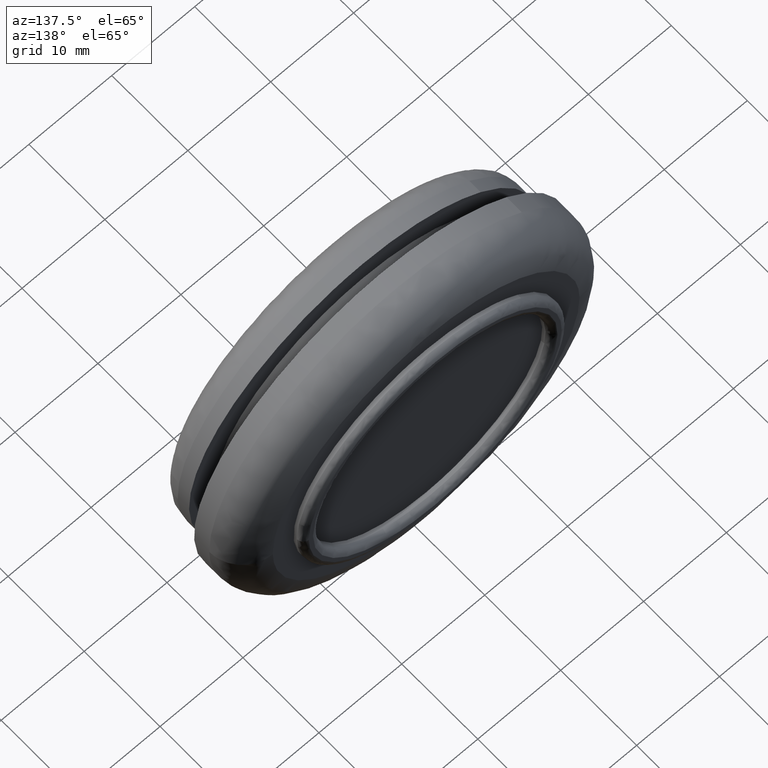
[diagram: clean part render]
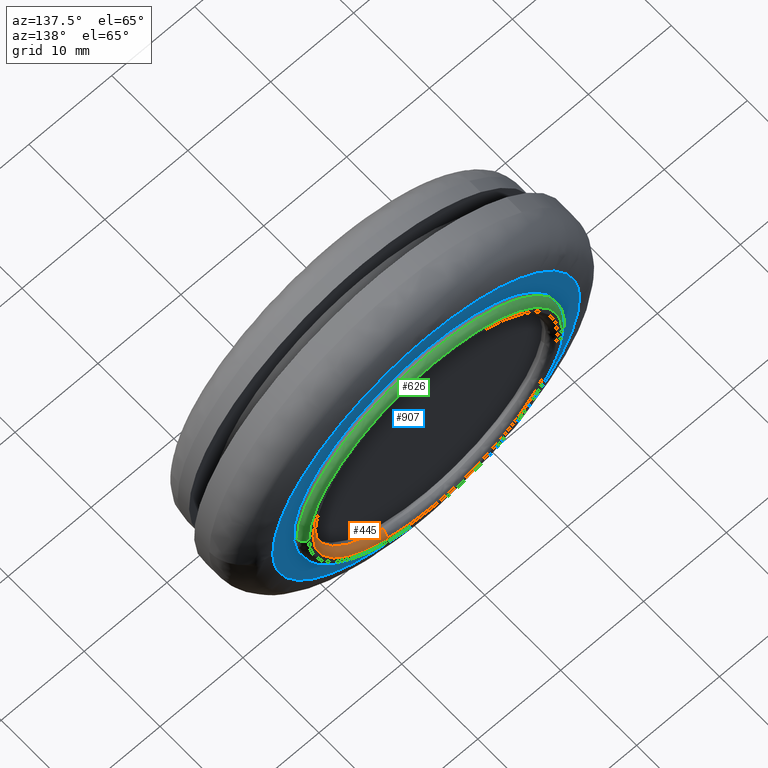
[diagram: same view with three faces highlighted in distinct colors, each labeled with its STEP entity id]
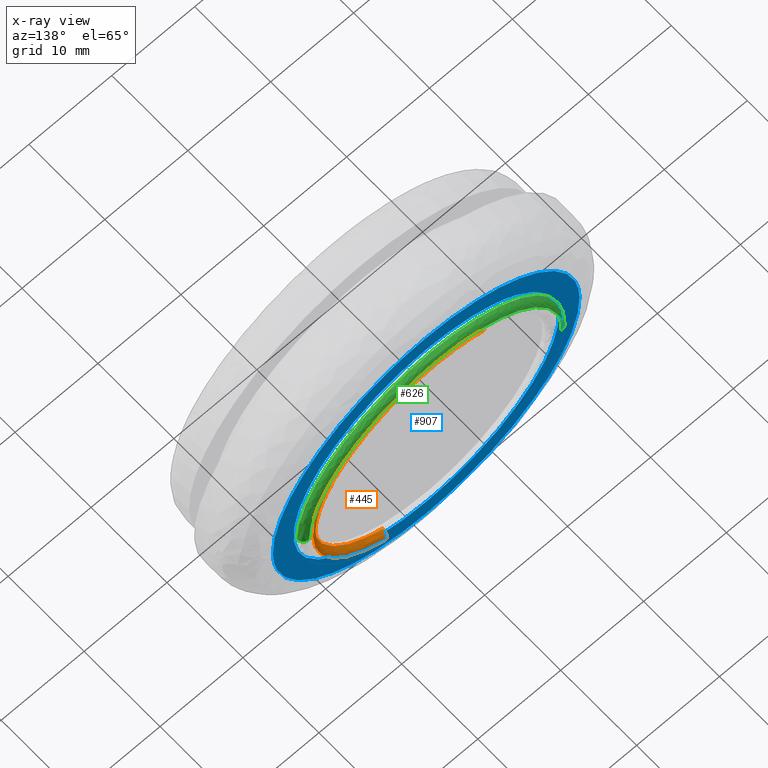
[diagram: x-ray of the same camera — body ghosted, the three highlighted faces saturated]
A machine part, auxiliary view with three faces highlighted in distinct colors.
The next image is the same camera in x-ray (body ghosted, the three faces saturated) — at least one of them is partly hidden behind the body in this view.
Their STEP definitions:

[orange] entity #445 — the highlighted face is a freeform B-spline surface patch.
#95=CARTESIAN_POINT('',(13.846225133910430,12.749999999930530,2.069311368702698));
#96=VERTEX_POINT('',#95);
#97=CARTESIAN_POINT('',(0.0,12.750000000000000,14.0));
#98=VERTEX_POINT('',#97);
#99=CARTESIAN_POINT('',(13.846225133910432,12.749999999930530,2.069311368702697));
#100=CARTESIAN_POINT('',(12.063189730230370,12.749999999988191,13.999999999998886));
#101=CARTESIAN_POINT('',(0.0,12.750000000000000,14.0));
#109=(BOUNDED_CURVE()B_SPLINE_CURVE(2,(#99,#100,#101),.UNSPECIFIED.,.F.,.U.)B_SPLINE_CURVE_WITH_KNOTS((3,3),(0.275488723286989,0.500000000000000),.UNSPECIFIED.)CURVE()GEOMETRIC_REPRESENTATION_ITEM()RATIONAL_B_SPLINE_CURVE((0.946365339344792,0.736968678014434,1.0))REPRESENTATION_ITEM(''));
#110=EDGE_CURVE('',#96,#98,#109,.T.);
#126=CARTESIAN_POINT('',(-5.640690099993938,12.749999999868569,12.813376416691669));
#127=VERTEX_POINT('',#126);
#143=CARTESIAN_POINT('',(0.0,12.750000000000000,14.0));
#144=CARTESIAN_POINT('',(-2.945159168792912,12.749999999934289,14.000000000000002));
#145=CARTESIAN_POINT('',(-5.640690099993938,12.749999999868574,12.813376416691668));
#153=(BOUNDED_CURVE()B_SPLINE_CURVE(2,(#143,#144,#145),.UNSPECIFIED.,.F.,.U.)B_SPLINE_CURVE_WITH_KNOTS((3,3),(0.500000000000000,0.568414990138580),.UNSPECIFIED.)CURVE()GEOMETRIC_REPRESENTATION_ITEM()RATIONAL_B_SPLINE_CURVE((1.0,0.919846853292883,0.883563120518114))REPRESENTATION_ITEM(''));
#154=EDGE_CURVE('',#98,#127,#153,.T.);
#177=CARTESIAN_POINT('',(5.640690099993938,12.749999999868569,-12.813376416691669));
#178=VERTEX_POINT('',#177);
#179=CARTESIAN_POINT('',(5.640690099993938,12.749999999868574,-12.813376416691668));
#180=CARTESIAN_POINT('',(13.999999999993587,12.749999999877682,-9.133450450081565));
#181=CARTESIAN_POINT('',(13.999999999986530,12.749999999920650,-2.011656E-012));
#182=CARTESIAN_POINT('',(13.999999999985720,12.749999999925535,1.040369350692162));
#183=CARTESIAN_POINT('',(13.846225133910432,12.749999999930530,2.069311368702697));
#191=(BOUNDED_CURVE()B_SPLINE_CURVE(2,(#179,#180,#181,#182,#183),.UNSPECIFIED.,.F.,.U.)B_SPLINE_CURVE_WITH_KNOTS((3,2,3),(0.068414990138580,0.250000000000000,0.275488723286989),.UNSPECIFIED.)CURVE()GEOMETRIC_REPRESENTATION_ITEM()RATIONAL_B_SPLINE_CURVE((0.883563120518114,0.787259927893665,1.0,0.970138103172114,0.946365339344792))REPRESENTATION_ITEM(''));
#192=EDGE_CURVE('',#178,#96,#191,.T.);
#272=CARTESIAN_POINT('',(-5.942869926745715,13.500000000000000,13.499807296077019));
#273=VERTEX_POINT('',#272);
#302=CARTESIAN_POINT('',(-5.640690099993938,12.749999999868576,12.813376416691669));
#303=CARTESIAN_POINT('',(-5.640690099988347,12.830416677140457,12.813376416678741));
#304=CARTESIAN_POINT('',(-5.647559214476792,12.909005332441540,12.828980278622581));
#305=CARTESIAN_POINT('',(-5.699215652896374,13.499999999929845,12.946322904803228));
#306=CARTESIAN_POINT('',(-5.942869926745716,13.499999999999996,13.499807296077014));
#314=(BOUNDED_CURVE()B_SPLINE_CURVE(2,(#302,#303,#304,#305,#306),.UNSPECIFIED.,.F.,.U.)B_SPLINE_CURVE_WITH_KNOTS((3,2,3),(-2.293216329795605,-2.0,-0.269009498079477),.UNSPECIFIED.)CURVE()GEOMETRIC_REPRESENTATION_ITEM()RATIONAL_B_SPLINE_CURVE((0.928314443225695,0.957999623487305,1.0,0.752052510611394,0.933299770329505))REPRESENTATION_ITEM(''));
#315=EDGE_CURVE('',#127,#273,#314,.T.);
#320=CARTESIAN_POINT('',(5.942869926745717,13.500000000000000,-13.499807296077011));
#321=VERTEX_POINT('',#320);
#322=CARTESIAN_POINT('',(5.640690099993938,12.749999999868569,-12.813376416691675));
#323=CARTESIAN_POINT('',(5.640690099988345,12.830416677140459,-12.813376416678732));
#324=CARTESIAN_POINT('',(5.647559214476792,12.909005332441540,-12.828980278622581));
#325=CARTESIAN_POINT('',(5.699215652896374,13.499999999929829,-12.946322904803226));
#326=CARTESIAN_POINT('',(5.942869926745717,13.500000000000005,-13.499807296077012));
#334=(BOUNDED_CURVE()B_SPLINE_CURVE(2,(#322,#323,#324,#325,#326),.UNSPECIFIED.,.F.,.U.)B_SPLINE_CURVE_WITH_KNOTS((3,2,3),(-2.293216329795607,-2.0,-0.269009498079483),.UNSPECIFIED.)CURVE()GEOMETRIC_REPRESENTATION_ITEM()RATIONAL_B_SPLINE_CURVE((0.928314443225695,0.957999623487304,1.0,0.752052510611395,0.933299770329503))REPRESENTATION_ITEM(''));
#335=EDGE_CURVE('',#178,#321,#334,.T.);
#353=CARTESIAN_POINT('',(5.283311095860194,12.692214669472985,-12.973137269812463));
#354=CARTESIAN_POINT('',(5.461406461206578,12.692214669472992,-12.894736329147442));
#355=CARTESIAN_POINT('',(18.457005207873081,12.692214669472989,-7.173828520782226));
#356=CARTESIAN_POINT('',(12.815416864327654,12.692214669472991,5.641588343545430));
#357=CARTESIAN_POINT('',(7.173828520782226,12.692214669472989,18.457005207873081));
#358=CARTESIAN_POINT('',(-5.821770225887594,12.692214669472992,12.736097399506409));
#359=CARTESIAN_POINT('',(-5.999865591237214,12.692214669472984,12.657696458839967));
#360=CARTESIAN_POINT('',(5.280118869096902,12.801694853273315,-12.965298777010286));
#361=CARTESIAN_POINT('',(5.458106627531381,12.801694853273307,-12.886945206938545));
#362=CARTESIAN_POINT('',(18.445853309957972,12.801694853273311,-7.169494025428119));
#363=CARTESIAN_POINT('',(12.807673667693047,12.801694853273313,5.638179642264930));
#364=CARTESIAN_POINT('',(7.169494025428119,12.801694853273311,18.445853309957972));
#365=CARTESIAN_POINT('',(-5.818252657001792,12.801694853273311,12.728402128446104));
#366=CARTESIAN_POINT('',(-5.996240415439503,12.801694853273309,12.650048558372932));
#367=CARTESIAN_POINT('',(5.288902777973022,12.909005332441536,-12.986867610180973));
#368=CARTESIAN_POINT('',(5.467186633576888,12.909005332441550,-12.908383692547620));
#369=CARTESIAN_POINT('',(18.476539493097771,12.909005332441543,-7.181421064149888));
#370=CARTESIAN_POINT('',(12.828980278623829,12.909005332441540,5.647559214473943));
#371=CARTESIAN_POINT('',(7.181421064149888,12.909005332441543,18.476539493097771));
#372=CARTESIAN_POINT('',(-5.827931795374314,12.909005332441533,12.749576864698588));
#373=CARTESIAN_POINT('',(-6.006215650981417,12.909005332441547,12.671092947063801));
#374=CARTESIAN_POINT('',(5.341109785295783,13.546803270780103,-13.115061589326926));
#375=CARTESIAN_POINT('',(5.521153489198200,13.546803270780105,-13.035802953262426));
#376=CARTESIAN_POINT('',(18.658922280815624,13.546803270780103,-7.252309208217377));
#377=CARTESIAN_POINT('',(12.955615744516502,13.546803270780105,5.703306536299124));
#378=CARTESIAN_POINT('',(7.252309208217377,13.546803270780103,18.658922280815624));
#379=CARTESIAN_POINT('',(-5.885459583403396,13.546803270780101,12.875428535769105));
#380=CARTESIAN_POINT('',(-6.065503287309084,13.546803270780112,12.796169899703164));
#381=CARTESIAN_POINT('',(5.586668427314940,13.497890666606503,-13.718029295165678));
#382=CARTESIAN_POINT('',(5.774989678246271,13.497890666606510,-13.635126726693375));
#383=CARTESIAN_POINT('',(19.516770144087801,13.497890666606512,-7.585735644344128));
#384=CARTESIAN_POINT('',(13.551252894215960,13.497890666606507,5.965517249871835));
#385=CARTESIAN_POINT('',(7.585735644344128,13.497890666606512,19.516770144087801));
#386=CARTESIAN_POINT('',(-6.156044821500901,13.497890666606503,13.467379061737018));
#387=CARTESIAN_POINT('',(-6.344366072435651,13.497890666606509,13.384476493263193));
#395=(BOUNDED_SURFACE()B_SPLINE_SURFACE(2,2,((#353,#360,#367,#374,#381),(#354,#361,#368,#375,#382),(#355,#362,#369,#376,#383),(#356,#363,#370,#377,#384),(#357,#364,#371,#378,#385),(#358,#365,#372,#379,#386),(#359,#366,#373,#380,#387)),.UNSPECIFIED.,.F.,.F.,.U.)B_SPLINE_SURFACE_WITH_KNOTS((3,1,2,1,3),(3,2,3),(0.0,0.490634635224462,25.022366396626751,49.554098158029042,50.044732793262561),(0.0,0.241626819884719,1.364264258951742),.UNSPECIFIED.)GEOMETRIC_REPRESENTATION_ITEM()RATIONAL_B_SPLINE_SURFACE(((0.919959451653240,0.954570729073710,1.011715728752453,0.746210781390082,0.967137348607946),(0.914632858870051,0.949043735957448,1.005857864376226,0.741890198612496,0.961537594388138),(0.642976626925439,0.667167087026046,0.707106781186548,0.521540476954021,0.675950129175847),(0.909306266086861,0.943516742841185,1.0,0.737569615834910,0.955937840168329),(0.642976626925439,0.667167087026046,0.707106781186548,0.521540476954021,0.675950129175847),(0.914632858870149,0.949043735957550,1.005857864376335,0.741890198612576,0.961537594388241),(0.919959451653437,0.954570729073914,1.011715728752669,0.746210781390242,0.967137348608153)))REPRESENTATION_ITEM('')SURFACE());
#396=CARTESIAN_POINT('',(0.0,13.500000000000000,14.750000000000000));
#397=VERTEX_POINT('',#396);
#398=CARTESIAN_POINT('',(0.0,13.500000000000000,14.750000000000000));
#399=CARTESIAN_POINT('',(-3.102935552818686,13.500000000000000,14.749999999960179));
#400=CARTESIAN_POINT('',(-5.942869926745715,13.500000000000000,13.499807296077014));
#408=(BOUNDED_CURVE()B_SPLINE_CURVE(2,(#398,#399,#400),.UNSPECIFIED.,.F.,.U.)B_SPLINE_CURVE_WITH_KNOTS((3,3),(0.500000000000000,0.568414990138597),.UNSPECIFIED.)CURVE()GEOMETRIC_REPRESENTATION_ITEM()RATIONAL_B_SPLINE_CURVE((1.0,0.919846853292863,0.883563120518096))REPRESENTATION_ITEM(''));
#409=EDGE_CURVE('',#397,#273,#408,.T.);
#410=ORIENTED_EDGE('',*,*,#409,.F.);
#411=CARTESIAN_POINT('',(5.942869926745717,13.500000000000000,-13.499807296077011));
#412=CARTESIAN_POINT('',(6.853675326309003,13.499999999999909,-13.099018086749730));
#413=CARTESIAN_POINT('',(8.204318647409204,13.500000000000091,-12.332745564235220));
#414=CARTESIAN_POINT('',(10.050113057796359,13.499999999999909,-10.861421394565911));
#415=CARTESIAN_POINT('',(11.406755435585399,13.500000000000140,-9.432094295888241));
#416=CARTESIAN_POINT('',(12.618559534126859,13.499999999999901,-7.718434133915164));
#417=CARTESIAN_POINT('',(13.560930191428680,13.499999999999950,-5.930403632964288));
#418=CARTESIAN_POINT('',(14.211185765089930,13.500000000000259,-4.099260590713141));
#419=CARTESIAN_POINT('',(14.605488109692240,13.500000000000369,-2.279639700219149));
#420=CARTESIAN_POINT('',(14.753134588221879,13.500000000000011,-0.791560129396213));
#421=CARTESIAN_POINT('',(14.753715793997211,13.499999999999631,0.780675635154686));
#422=CARTESIAN_POINT('',(14.622594095224040,13.500000000000970,2.112211416522361));
#423=CARTESIAN_POINT('',(14.315320133049800,13.499999999999000,3.654168082162051));
#424=CARTESIAN_POINT('',(13.803948223313141,13.500000000000689,5.335916245923119));
#425=CARTESIAN_POINT('',(13.037841511072150,13.499999999999780,6.978677112834662));
#426=CARTESIAN_POINT('',(12.078918245527850,13.500000000000050,8.512002515830879));
#427=CARTESIAN_POINT('',(11.158855110427210,13.499999999999980,9.690866731342721));
#428=CARTESIAN_POINT('',(9.860581034992842,13.500000000000011,11.024710788186869));
#429=CARTESIAN_POINT('',(8.194184146518849,13.500000000000000,12.347929903241990));
#430=CARTESIAN_POINT('',(6.144701796955421,13.500000000000011,13.476322034720139));
#431=CARTESIAN_POINT('',(4.045889414349139,13.500000000000000,14.233362559481121));
#432=CARTESIAN_POINT('',(2.042487616503298,13.500000000000020,14.655564429250420));
#433=CARTESIAN_POINT('',(0.680826559342138,13.500000000000000,14.750023479330190));
#434=CARTESIAN_POINT('',(0.0,13.500000000000000,14.750000000000000));
#435=B_SPLINE_CURVE_WITH_KNOTS('',3,(#411,#412,#413,#414,#415,#416,#417,#418,#419,#420,#421,#422,#423,#424,#425,#426,#427,#428,#429,#430,#431,#432,#433,#434),.UNSPECIFIED.,.F.,.U.,(4,1,1,1,1,1,1,1,1,1,1,1,1,1,1,1,1,1,1,1,1,4),(0.000000077210807,2.985214363027112,4.634939948137436,7.070257021373237,8.877091774390419,10.919629181804250,13.119246218224580,14.690439033859951,16.497265568828780,17.597014206973331,19.403866274819720,20.503688005941470,22.310560745463579,24.667308818801398,25.924244313336558,27.731082746994570,29.145138527193939,31.501899178520659,34.094332568295222,36.136851167036433,38.179378851812423,40.221858282307117),.UNSPECIFIED.);
#436=EDGE_CURVE('',#321,#397,#435,.T.);
#437=ORIENTED_EDGE('',*,*,#436,.F.);
#438=ORIENTED_EDGE('',*,*,#335,.F.);
#439=ORIENTED_EDGE('',*,*,#192,.T.);
#440=ORIENTED_EDGE('',*,*,#110,.T.);
#441=ORIENTED_EDGE('',*,*,#154,.T.);
#442=ORIENTED_EDGE('',*,*,#315,.T.);
#443=EDGE_LOOP('',(#410,#437,#438,#439,#440,#441,#442));
#444=FACE_OUTER_BOUND('',#443,.T.);
#445=ADVANCED_FACE('',(#444),#395,.T.);

[blue] entity #907 — the highlighted face is a freeform B-spline surface patch.
#727=CARTESIAN_POINT('',(-11.013672622553081,12.300000000000001,11.605990494706781));
#728=VERTEX_POINT('',#727);
#734=CARTESIAN_POINT('',(0.0,12.300000000000001,16.0));
#735=VERTEX_POINT('',#734);
#736=CARTESIAN_POINT('',(0.0,12.300000000000001,16.0));
#737=CARTESIAN_POINT('',(-6.383352265322189,12.300000000000008,16.000000000000004));
#738=CARTESIAN_POINT('',(-11.013672622553090,12.299999999999999,11.605990494706798));
#746=(BOUNDED_CURVE()B_SPLINE_CURVE(2,(#736,#737,#738),.UNSPECIFIED.,.F.,.U.)B_SPLINE_CURVE_WITH_KNOTS((3,3),(0.500000000000000,0.621049519006122),.UNSPECIFIED.)CURVE()GEOMETRIC_REPRESENTATION_ITEM()RATIONAL_B_SPLINE_CURVE((1.0,0.858181666969907,0.853699661936156))REPRESENTATION_ITEM(''));
#747=EDGE_CURVE('',#735,#728,#746,.T.);
#749=CARTESIAN_POINT('',(11.013672622553081,12.300000000000001,-11.605990494706781));
#750=VERTEX_POINT('',#749);
#751=CARTESIAN_POINT('',(11.013672622553093,12.299999999999999,-11.605990494706795));
#752=CARTESIAN_POINT('',(15.999999999999998,12.299999999999999,-6.874142976037828));
#753=CARTESIAN_POINT('',(16.0,12.300000000000001,-3.061516E-016));
#754=CARTESIAN_POINT('',(15.999999999999998,12.300000000000002,15.999999999999998));
#755=CARTESIAN_POINT('',(0.0,12.300000000000001,16.0));
#763=(BOUNDED_CURVE()B_SPLINE_CURVE(2,(#751,#752,#753,#754,#755),.UNSPECIFIED.,.F.,.U.)B_SPLINE_CURVE_WITH_KNOTS((3,2,3),(0.121049519006122,0.250000000000000,0.500000000000000),.UNSPECIFIED.)CURVE()GEOMETRIC_REPRESENTATION_ITEM()RATIONAL_B_SPLINE_CURVE((0.853699661936156,0.848925114216641,1.0,0.707106781186548,1.0))REPRESENTATION_ITEM(''));
#764=EDGE_CURVE('',#750,#735,#763,.T.);
#794=CARTESIAN_POINT('',(0.0,12.300000000000001,-16.0));
#795=VERTEX_POINT('',#794);
#796=CARTESIAN_POINT('',(0.0,12.300000000000001,-16.0));
#797=CARTESIAN_POINT('',(6.383352265322192,12.299999999999997,-16.000000000000004));
#798=CARTESIAN_POINT('',(11.013672622553095,12.299999999999999,-11.605990494706795));
#806=(BOUNDED_CURVE()B_SPLINE_CURVE(2,(#796,#797,#798),.UNSPECIFIED.,.F.,.U.)B_SPLINE_CURVE_WITH_KNOTS((3,3),(0.0,0.121049519006122),.UNSPECIFIED.)CURVE()GEOMETRIC_REPRESENTATION_ITEM()RATIONAL_B_SPLINE_CURVE((1.0,0.858181666969907,0.853699661936156))REPRESENTATION_ITEM(''));
#807=EDGE_CURVE('',#795,#750,#806,.T.);
#809=CARTESIAN_POINT('',(-11.013672622553090,12.299999999999999,11.605990494706798));
#810=CARTESIAN_POINT('',(-15.999999999999998,12.299999999999999,6.874142976037832));
#811=CARTESIAN_POINT('',(-16.0,12.300000000000001,-3.061516E-016));
#812=CARTESIAN_POINT('',(-15.999999999999998,12.300000000000002,-15.999999999999998));
#813=CARTESIAN_POINT('',(0.0,12.300000000000001,-16.0));
#821=(BOUNDED_CURVE()B_SPLINE_CURVE(2,(#809,#810,#811,#812,#813),.UNSPECIFIED.,.F.,.U.)B_SPLINE_CURVE_WITH_KNOTS((3,2,3),(0.621049519006122,0.750000000000000,1.0),.UNSPECIFIED.)CURVE()GEOMETRIC_REPRESENTATION_ITEM()RATIONAL_B_SPLINE_CURVE((0.853699661936156,0.848925114216641,1.0,0.707106781186548,1.0))REPRESENTATION_ITEM(''));
#822=EDGE_CURVE('',#728,#795,#821,.T.);
#830=CARTESIAN_POINT('',(-20.346543324298569,12.300000000000001,20.348149928286819));
#831=CARTESIAN_POINT('',(-20.346543324298569,12.300000000000001,-20.348150920704150));
#832=CARTESIAN_POINT('',(20.346544316637551,12.300000000000001,20.348149928286819));
#833=CARTESIAN_POINT('',(20.346544316637551,12.300000000000001,-20.348150920704150));
#834=B_SPLINE_SURFACE_WITH_KNOTS('',1,1,((#830,#832),(#831,#833)),.UNSPECIFIED.,.F.,.F.,.U.,(2,2),(2,2),(0.0,40.696300848990973),(0.0,40.693087640936128),.UNSPECIFIED.);
#835=CARTESIAN_POINT('',(-18.498539318125371,12.300000000000001,0.232471737890504));
#836=VERTEX_POINT('',#835);
#837=CARTESIAN_POINT('',(0.0,12.300000000000001,-18.500000000000000));
#838=VERTEX_POINT('',#837);
#839=CARTESIAN_POINT('',(-18.498539318125367,12.299999999999997,0.232471737890504));
#840=CARTESIAN_POINT('',(-18.500000000354220,12.299999999999997,0.116240457876420));
#841=CARTESIAN_POINT('',(-18.500000000353111,12.300000000000001,4.433157E-012));
#842=CARTESIAN_POINT('',(-18.500000000175447,12.300000000000002,-18.499999999997794));
#843=CARTESIAN_POINT('',(0.0,12.300000000000001,-18.500000000000000));
#851=(BOUNDED_CURVE()B_SPLINE_CURVE(2,(#839,#840,#841,#842,#843),.UNSPECIFIED.,.F.,.U.)B_SPLINE_CURVE_WITH_KNOTS((3,2,3),(0.747784295921310,0.750000000000000,1.0),.UNSPECIFIED.)CURVE()GEOMETRIC_REPRESENTATION_ITEM()RATIONAL_B_SPLINE_CURVE((0.994854295643049,0.997404141201817,1.0,0.707106781186548,1.0))REPRESENTATION_ITEM(''));
#852=EDGE_CURVE('',#836,#838,#851,.T.);
#853=ORIENTED_EDGE('',*,*,#852,.F.);
#854=CARTESIAN_POINT('',(0.0,12.300000000000001,18.500000000000000));
#855=VERTEX_POINT('',#854);
#856=CARTESIAN_POINT('',(0.0,12.300000000000001,18.500000000000000));
#857=CARTESIAN_POINT('',(-18.268970703419505,12.300000000000002,18.500000000002238));
#858=CARTESIAN_POINT('',(-18.498539318125367,12.299999999999997,0.232471737890504));
#866=(BOUNDED_CURVE()B_SPLINE_CURVE(2,(#856,#857,#858),.UNSPECIFIED.,.F.,.U.)B_SPLINE_CURVE_WITH_KNOTS((3,3),(0.500000000000000,0.747784295921310),.UNSPECIFIED.)CURVE()GEOMETRIC_REPRESENTATION_ITEM()RATIONAL_B_SPLINE_CURVE((1.0,0.709702639984730,0.994854295643049))REPRESENTATION_ITEM(''));
#867=EDGE_CURVE('',#855,#836,#866,.T.);
#868=ORIENTED_EDGE('',*,*,#867,.F.);
#869=CARTESIAN_POINT('',(18.498539318125371,12.300000000000001,-0.232471737890505));
#870=VERTEX_POINT('',#869);
#871=CARTESIAN_POINT('',(18.498539318125367,12.299999999999997,-0.232471737890505));
#872=CARTESIAN_POINT('',(18.500000000354220,12.299999999999997,-0.116240457876423));
#873=CARTESIAN_POINT('',(18.500000000353101,12.300000000000001,-4.437080E-012));
#874=CARTESIAN_POINT('',(18.500000000175447,12.300000000000002,18.499999999997794));
#875=CARTESIAN_POINT('',(0.0,12.300000000000001,18.500000000000000));
#883=(BOUNDED_CURVE()B_SPLINE_CURVE(2,(#871,#872,#873,#874,#875),.UNSPECIFIED.,.F.,.U.)B_SPLINE_CURVE_WITH_KNOTS((3,2,3),(0.247784295921310,0.250000000000000,0.500000000000000),.UNSPECIFIED.)CURVE()GEOMETRIC_REPRESENTATION_ITEM()RATIONAL_B_SPLINE_CURVE((0.994854295643049,0.997404141201817,1.0,0.707106781186548,1.0))REPRESENTATION_ITEM(''));
#884=EDGE_CURVE('',#870,#855,#883,.T.);
#885=ORIENTED_EDGE('',*,*,#884,.F.);
#886=CARTESIAN_POINT('',(0.0,12.300000000000001,-18.500000000000000));
#887=CARTESIAN_POINT('',(18.268970703419505,12.300000000000002,-18.500000000002238));
#888=CARTESIAN_POINT('',(18.498539318125367,12.299999999999997,-0.232471737890505));
#896=(BOUNDED_CURVE()B_SPLINE_CURVE(2,(#886,#887,#888),.UNSPECIFIED.,.F.,.U.)B_SPLINE_CURVE_WITH_KNOTS((3,3),(0.0,0.247784295921310),.UNSPECIFIED.)CURVE()GEOMETRIC_REPRESENTATION_ITEM()RATIONAL_B_SPLINE_CURVE((1.0,0.709702639984730,0.994854295643049))REPRESENTATION_ITEM(''));
#897=EDGE_CURVE('',#838,#870,#896,.T.);
#898=ORIENTED_EDGE('',*,*,#897,.F.);
#899=EDGE_LOOP('',(#853,#868,#885,#898));
#900=FACE_OUTER_BOUND('',#899,.T.);
#901=ORIENTED_EDGE('',*,*,#747,.T.);
#902=ORIENTED_EDGE('',*,*,#822,.T.);
#903=ORIENTED_EDGE('',*,*,#807,.T.);
#904=ORIENTED_EDGE('',*,*,#764,.T.);
#905=EDGE_LOOP('',(#901,#902,#903,#904));
#906=FACE_BOUND('',#905,.T.);
#907=ADVANCED_FACE('',(#900,#906),#834,.F.);

[green] entity #626 — the highlighted face is a freeform B-spline surface patch.
#451=CARTESIAN_POINT('',(-15.250000000336151,13.500000000000000,8.852452E-016));
#452=VERTEX_POINT('',#451);
#468=CARTESIAN_POINT('',(0.0,13.500000000000000,15.250000000000000));
#469=VERTEX_POINT('',#468);
#470=CARTESIAN_POINT('',(0.0,13.500000000000000,15.250000000000000));
#471=CARTESIAN_POINT('',(-15.250000000168066,13.500000000000000,15.250000000000002));
#472=CARTESIAN_POINT('',(-15.250000000336151,13.500000000000000,8.852452E-016));
#480=(BOUNDED_CURVE()B_SPLINE_CURVE(2,(#470,#471,#472),.UNSPECIFIED.,.F.,.U.)B_SPLINE_CURVE_WITH_KNOTS((3,3),(0.500000000000000,0.750000000000000),.UNSPECIFIED.)CURVE()GEOMETRIC_REPRESENTATION_ITEM()RATIONAL_B_SPLINE_CURVE((1.0,0.707106781186547,1.0))REPRESENTATION_ITEM(''));
#481=EDGE_CURVE('',#469,#452,#480,.T.);
#483=CARTESIAN_POINT('',(15.250000000336151,13.500000000000000,-3.546847E-015));
#484=VERTEX_POINT('',#483);
#485=CARTESIAN_POINT('',(15.250000000336144,13.500000000000004,-3.546847E-015));
#486=CARTESIAN_POINT('',(15.250000000168068,13.500000000000000,15.250000000000004));
#487=CARTESIAN_POINT('',(0.0,13.500000000000000,15.250000000000000));
#495=(BOUNDED_CURVE()B_SPLINE_CURVE(2,(#485,#486,#487),.UNSPECIFIED.,.F.,.U.)B_SPLINE_CURVE_WITH_KNOTS((3,3),(0.250000000000000,0.500000000000000),.UNSPECIFIED.)CURVE()GEOMETRIC_REPRESENTATION_ITEM()RATIONAL_B_SPLINE_CURVE((1.000000000000000,0.707106781186547,1.0))REPRESENTATION_ITEM(''));
#496=EDGE_CURVE('',#484,#469,#495,.T.);
#520=CARTESIAN_POINT('',(15.197987068401499,13.498194262839897,-0.424886137915557));
#521=CARTESIAN_POINT('',(15.197987068401508,13.498194262839890,-0.213680284204295));
#522=CARTESIAN_POINT('',(15.197987068401501,13.498194262839894,15.197987068401495));
#523=CARTESIAN_POINT('',(3.722310E-015,13.498194262839895,15.197987068401508));
#524=CARTESIAN_POINT('',(-15.197987068401494,13.498194262839894,15.197987068401504));
#525=CARTESIAN_POINT('',(-15.197987068401508,13.498194262839890,-0.213680284204289));
#526=CARTESIAN_POINT('',(-15.197987068401499,13.498194262839897,-0.424886137915554));
#527=CARTESIAN_POINT('',(16.058304453939975,13.558001764112571,-0.448937805394802));
#528=CARTESIAN_POINT('',(16.058304453939972,13.558001764112571,-0.225776153388838));
#529=CARTESIAN_POINT('',(16.058304453939972,13.558001764112566,16.058304453939964));
#530=CARTESIAN_POINT('',(3.933020E-015,13.558001764112571,16.058304453939975));
#531=CARTESIAN_POINT('',(-16.058304453939964,13.558001764112566,16.058304453939979));
#532=CARTESIAN_POINT('',(-16.058304453939975,13.558001764112571,-0.225776153388832));
#533=CARTESIAN_POINT('',(-16.058304453939975,13.558001764112571,-0.448937805394798));
#534=CARTESIAN_POINT('',(15.998174729169445,12.697706839527264,-0.447256774451909));
#535=CARTESIAN_POINT('',(15.998174729169438,12.697706839527253,-0.224930742965716));
#536=CARTESIAN_POINT('',(15.998174729169447,12.697706839527255,15.998174729169431));
#537=CARTESIAN_POINT('',(3.918293E-015,12.697706839527257,15.998174729169442));
#538=CARTESIAN_POINT('',(-15.998174729169431,12.697706839527255,15.998174729169447));
#539=CARTESIAN_POINT('',(-15.998174729169438,12.697706839527253,-0.224930742965710));
#540=CARTESIAN_POINT('',(-15.998174729169444,12.697706839527262,-0.447256774451905));
#548=(BOUNDED_SURFACE()B_SPLINE_SURFACE(2,2,((#520,#527,#534),(#521,#528,#535),(#522,#529,#536),(#523,#530,#537),(#524,#531,#538),(#525,#532,#539),(#526,#533,#540)),.UNSPECIFIED.,.F.,.F.,.U.)B_SPLINE_SURFACE_WITH_KNOTS((3,1,2,1,3),(3,3),(0.0,0.530132875682920,27.036776659828909,53.543420443974902,54.073553319657819),(0.0,1.367045382747768),.UNSPECIFIED.)GEOMETRIC_REPRESENTATION_ITEM()RATIONAL_B_SPLINE_SURFACE(((0.926697838400259,0.606435486919036,0.921564728292852),(0.921332230155912,0.602924207283492,0.916228840909793),(0.647686209694202,0.423848945870745,0.644098584373797),(0.915966621911565,0.599412927647948,0.910892953526734),(0.647686209694202,0.423848945870745,0.644098584373797),(0.921332230155912,0.602924207283492,0.916228840909793),(0.926697838400259,0.606435486919036,0.921564728292852)))REPRESENTATION_ITEM('')SURFACE());
#549=CARTESIAN_POINT('',(16.0,12.750000000382411,-3.546573E-015));
#550=VERTEX_POINT('',#549);
#551=CARTESIAN_POINT('',(0.0,12.750000000000000,16.0));
#552=VERTEX_POINT('',#551);
#553=CARTESIAN_POINT('',(16.0,12.750000000382411,-3.546573E-015));
#554=CARTESIAN_POINT('',(16.0,12.750000000191203,16.0));
#555=CARTESIAN_POINT('',(0.0,12.750000000000000,16.0));
#563=(BOUNDED_CURVE()B_SPLINE_CURVE(2,(#553,#554,#555),.UNSPECIFIED.,.F.,.U.)B_SPLINE_CURVE_WITH_KNOTS((3,3),(0.250000000000000,0.500000000000000),.UNSPECIFIED.)CURVE()GEOMETRIC_REPRESENTATION_ITEM()RATIONAL_B_SPLINE_CURVE((1.0,0.707106781186547,1.0))REPRESENTATION_ITEM(''));
#564=EDGE_CURVE('',#550,#552,#563,.T.);
#565=ORIENTED_EDGE('',*,*,#564,.F.);
#566=CARTESIAN_POINT('',(15.250000000336145,13.500000000000004,-3.540981E-015));
#567=CARTESIAN_POINT('',(15.999999999617579,13.499999999663848,-3.497002E-015));
#568=CARTESIAN_POINT('',(16.000000000000004,12.750000000382407,-3.540432E-015));
#576=(BOUNDED_CURVE()B_SPLINE_CURVE(2,(#566,#567,#568),.UNSPECIFIED.,.F.,.U.)B_SPLINE_CURVE_WITH_KNOTS((3,3),(-1.736413120608298,-0.276558718540201),.UNSPECIFIED.)CURVE()GEOMETRIC_REPRESENTATION_ITEM()RATIONAL_B_SPLINE_CURVE((0.888510408896129,0.626638727413454,0.883897566953642))REPRESENTATION_ITEM(''));
#577=EDGE_CURVE('',#484,#550,#576,.T.);
#578=ORIENTED_EDGE('',*,*,#577,.F.);
#579=ORIENTED_EDGE('',*,*,#496,.T.);
#580=ORIENTED_EDGE('',*,*,#481,.T.);
#581=CARTESIAN_POINT('',(-16.0,12.750000000382411,6.214178E-015));
#582=VERTEX_POINT('',#581);
#583=CARTESIAN_POINT('',(-15.250000000336147,13.500000000000005,1.770490E-015));
#584=CARTESIAN_POINT('',(-15.999999999617588,13.499999999663846,1.748501E-015));
#585=CARTESIAN_POINT('',(-16.0,12.750000000382412,1.770216E-015));
#593=(BOUNDED_CURVE()B_SPLINE_CURVE(2,(#583,#584,#585),.UNSPECIFIED.,.F.,.U.)B_SPLINE_CURVE_WITH_KNOTS((3,3),(-1.736413120608298,-0.276558718540202),.UNSPECIFIED.)CURVE()GEOMETRIC_REPRESENTATION_ITEM()RATIONAL_B_SPLINE_CURVE((0.888510408896129,0.626638727413455,0.883897566953641))REPRESENTATION_ITEM(''));
#594=EDGE_CURVE('',#452,#582,#593,.T.);
#595=ORIENTED_EDGE('',*,*,#594,.T.);
#596=CARTESIAN_POINT('',(-11.013672615375750,12.750000000184009,11.605990501517811));
#597=VERTEX_POINT('',#596);
#598=CARTESIAN_POINT('',(-11.013672615375750,12.750000000184011,11.605990501517805));
#599=CARTESIAN_POINT('',(-16.0,12.750000000300270,6.874142981898362));
#600=CARTESIAN_POINT('',(-16.0,12.750000000382411,6.214178E-015));
#608=(BOUNDED_CURVE()B_SPLINE_CURVE(2,(#598,#599,#600),.UNSPECIFIED.,.F.,.U.)B_SPLINE_CURVE_WITH_KNOTS((3,3),(0.621049518912794,0.750000000000000),.UNSPECIFIED.)CURVE()GEOMETRIC_REPRESENTATION_ITEM()RATIONAL_B_SPLINE_CURVE((0.853699661943067,0.848925114107301,1.0))REPRESENTATION_ITEM(''));
#609=EDGE_CURVE('',#597,#582,#608,.T.);
#610=ORIENTED_EDGE('',*,*,#609,.F.);
#611=CARTESIAN_POINT('',(0.0,12.750000000000000,16.0));
#612=CARTESIAN_POINT('',(-6.383352259587404,12.750000000076289,15.999999999999998));
#613=CARTESIAN_POINT('',(-11.013672615375762,12.750000000184126,11.605990501517825));
#621=(BOUNDED_CURVE()B_SPLINE_CURVE(2,(#611,#612,#613),.UNSPECIFIED.,.F.,.U.)B_SPLINE_CURVE_WITH_KNOTS((3,3),(0.500000000000000,0.621049518912794),.UNSPECIFIED.)CURVE()GEOMETRIC_REPRESENTATION_ITEM()RATIONAL_B_SPLINE_CURVE((1.0,0.858181667079247,0.853699661943067))REPRESENTATION_ITEM(''));
#622=EDGE_CURVE('',#552,#597,#621,.T.);
#623=ORIENTED_EDGE('',*,*,#622,.F.);
#624=EDGE_LOOP('',(#565,#578,#579,#580,#595,#610,#623));
#625=FACE_OUTER_BOUND('',#624,.T.);
#626=ADVANCED_FACE('',(#625),#548,.T.);